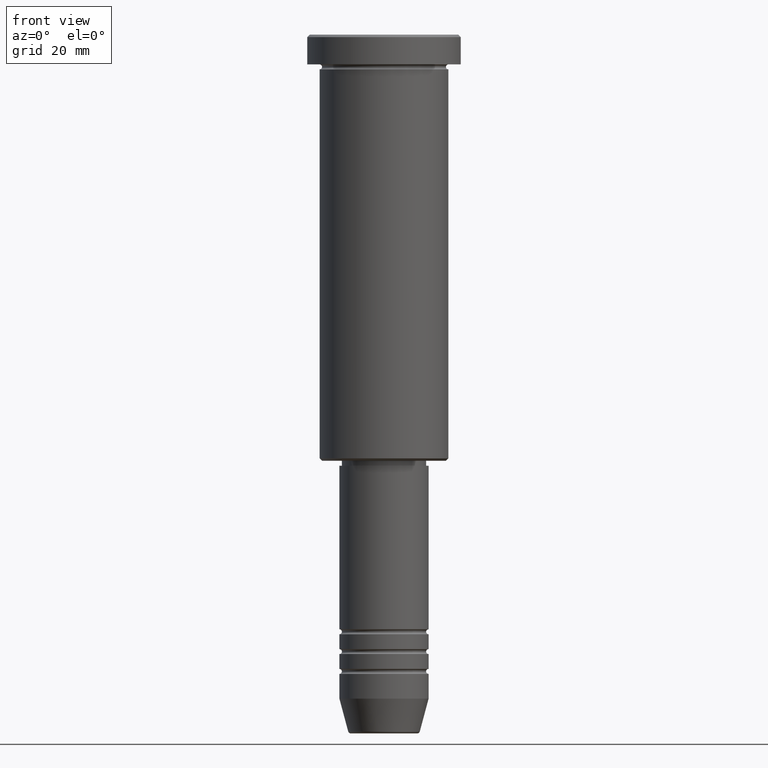
[diagram: clean part render]
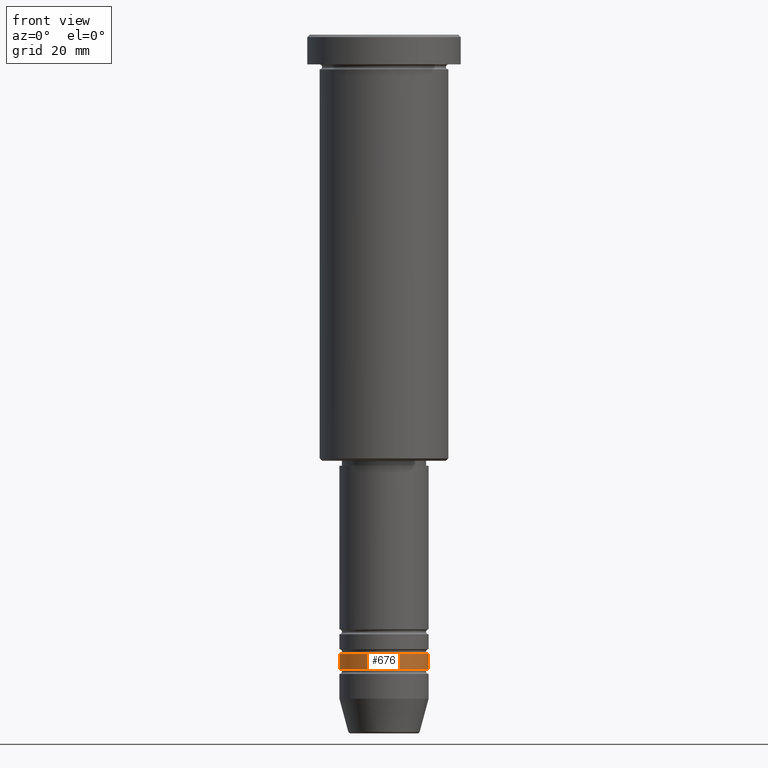
[diagram: same view with one face highlighted and labeled with its STEP entity id]
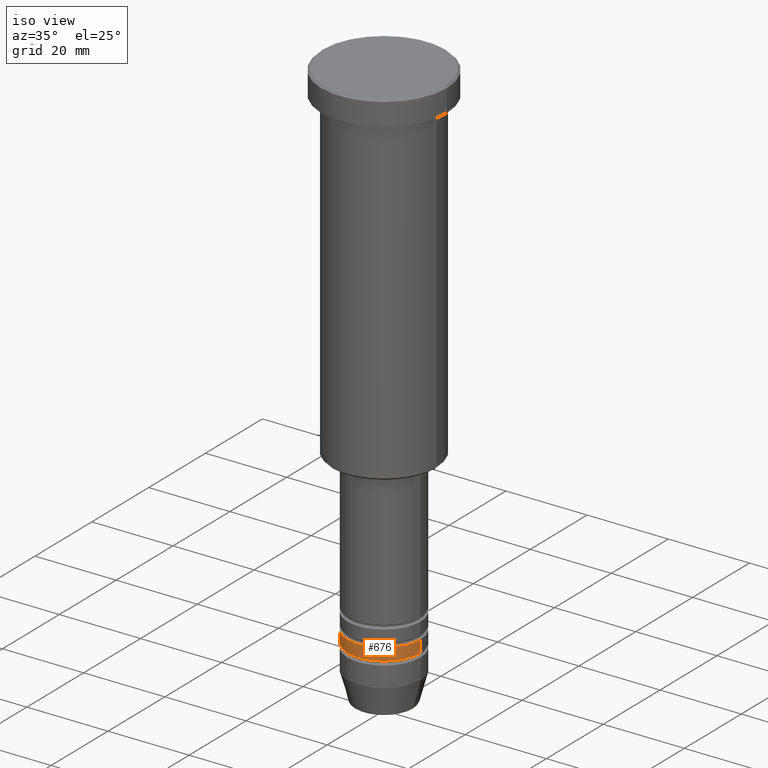
[diagram: same view with one face highlighted and labeled with its STEP entity id]
A machine part, front view. The second image highlights one B-rep face of the part: STEP entity #676.
A second angle (iso view) of the same face is appended — the face is thin or edge-on in the first view.
In plain terms, the highlighted cylindrical surface (partial cylindrical patch) has radius 9 mm, axis along (-0, -0, 1).
Its self-contained STEP definition (entity closure, byte-faithful):
#32 = CARTESIAN_POINT ( 'NONE',  ( 0.000000000000000000, 0.000000000000000000, -124.9999999999998863 ) ) ;
#43 = VERTEX_POINT ( 'NONE', #445 ) ;
#62 = VERTEX_POINT ( 'NONE', #621 ) ;
#93 = VECTOR ( 'NONE', #796, 1000.000000000000000 ) ;
#105 = DIRECTION ( 'NONE',  ( -0.000000000000000000, -0.000000000000000000, 1.000000000000000000 ) ) ;
#108 = EDGE_CURVE ( 'NONE', #280, #62, #362, .T. ) ;
#120 = CYLINDRICAL_SURFACE ( 'NONE', #474, 9.000000000000001776 ) ;
#158 = VERTEX_POINT ( 'NONE', #462 ) ;
#170 = CARTESIAN_POINT ( 'NONE',  ( 0.000000000000000000, 0.000000000000000000, -127.9999999999998863 ) ) ;
#185 = ORIENTED_EDGE ( 'NONE', *, *, #108, .T. ) ;
#228 = AXIS2_PLACEMENT_3D ( 'NONE', #32, #389, #732 ) ;
#280 = VERTEX_POINT ( 'NONE', #589 ) ;
#296 = FACE_OUTER_BOUND ( 'NONE', #587, .T. ) ;
#362 = CIRCLE ( 'NONE', #1105, 9.000000000000001776 ) ;
#389 = DIRECTION ( 'NONE',  ( -0.000000000000000000, -0.000000000000000000, 1.000000000000000000 ) ) ;
#392 = ORIENTED_EDGE ( 'NONE', *, *, #752, .F. ) ;
#423 = EDGE_CURVE ( 'NONE', #62, #158, #600, .T. ) ;
#445 = CARTESIAN_POINT ( 'NONE',  ( -9.000000000000000000, 1.102182119232617714E-15, -124.9999999999998863 ) ) ;
#462 = CARTESIAN_POINT ( 'NONE',  ( 9.000000000000000000, 0.000000000000000000, -124.9999999999998863 ) ) ;
#474 = AXIS2_PLACEMENT_3D ( 'NONE', #481, #105, #1097 ) ;
#481 = CARTESIAN_POINT ( 'NONE',  ( 0.000000000000000000, 0.000000000000000000, 0.000000000000000000 ) ) ;
#489 = LINE ( 'NONE', #859, #93 ) ;
#507 = ORIENTED_EDGE ( 'NONE', *, *, #423, .T. ) ;
#539 = DIRECTION ( 'NONE',  ( -0.000000000000000000, -0.000000000000000000, 1.000000000000000000 ) ) ;
#583 = VECTOR ( 'NONE', #770, 1000.000000000000000 ) ;
#587 = EDGE_LOOP ( 'NONE', ( #392, #185, #507, #810 ) ) ;
#589 = CARTESIAN_POINT ( 'NONE',  ( -9.000000000000001776, 1.102182119232617911E-15, -127.9999999999998863 ) ) ;
#600 = LINE ( 'NONE', #972, #583 ) ;
#621 = CARTESIAN_POINT ( 'NONE',  ( 9.000000000000001776, 0.000000000000000000, -127.9999999999998863 ) ) ;
#670 = EDGE_CURVE ( 'NONE', #43, #158, #1084, .T. ) ;
#676 = ADVANCED_FACE ( 'NONE', ( #296 ), #120, .T. ) ;
#732 = DIRECTION ( 'NONE',  ( 1.000000000000000000, 0.000000000000000000, 0.000000000000000000 ) ) ;
#752 = EDGE_CURVE ( 'NONE', #280, #43, #489, .T. ) ;
#770 = DIRECTION ( 'NONE',  ( -0.000000000000000000, -0.000000000000000000, 1.000000000000000000 ) ) ;
#796 = DIRECTION ( 'NONE',  ( -0.000000000000000000, -0.000000000000000000, 1.000000000000000000 ) ) ;
#810 = ORIENTED_EDGE ( 'NONE', *, *, #670, .F. ) ;
#859 = CARTESIAN_POINT ( 'NONE',  ( -9.000000000000001776, 1.102182119232617911E-15, 0.000000000000000000 ) ) ;
#912 = DIRECTION ( 'NONE',  ( 1.000000000000000000, 0.000000000000000000, 0.000000000000000000 ) ) ;
#972 = CARTESIAN_POINT ( 'NONE',  ( 9.000000000000001776, 0.000000000000000000, 0.000000000000000000 ) ) ;
#1084 = CIRCLE ( 'NONE', #228, 9.000000000000000000 ) ;
#1097 = DIRECTION ( 'NONE',  ( 1.000000000000000000, 0.000000000000000000, 0.000000000000000000 ) ) ;
#1105 = AXIS2_PLACEMENT_3D ( 'NONE', #170, #539, #912 ) ;